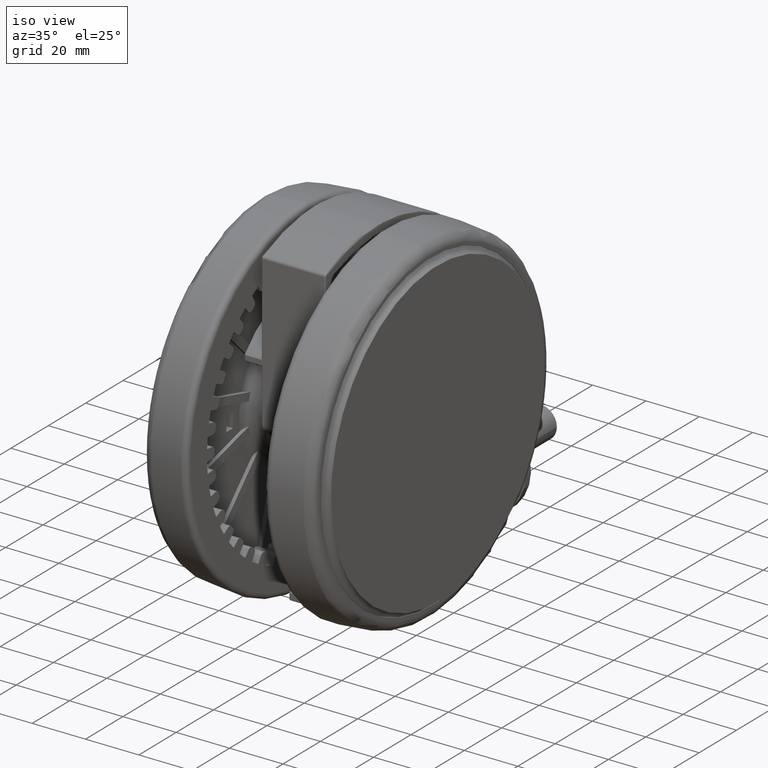
[diagram: clean part render]
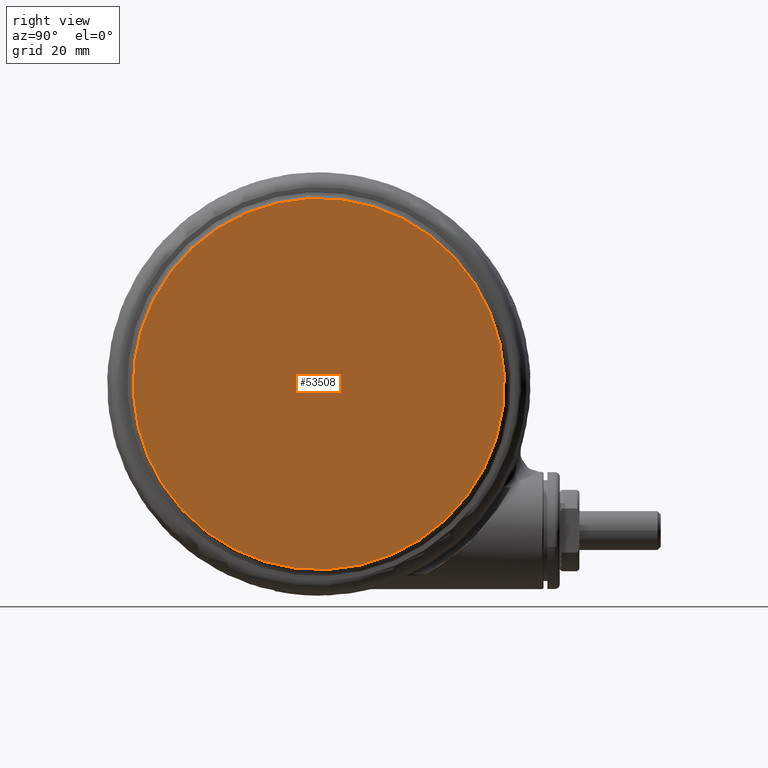
[diagram: tour spotlight — one face highlighted and labeled with its STEP entity id]
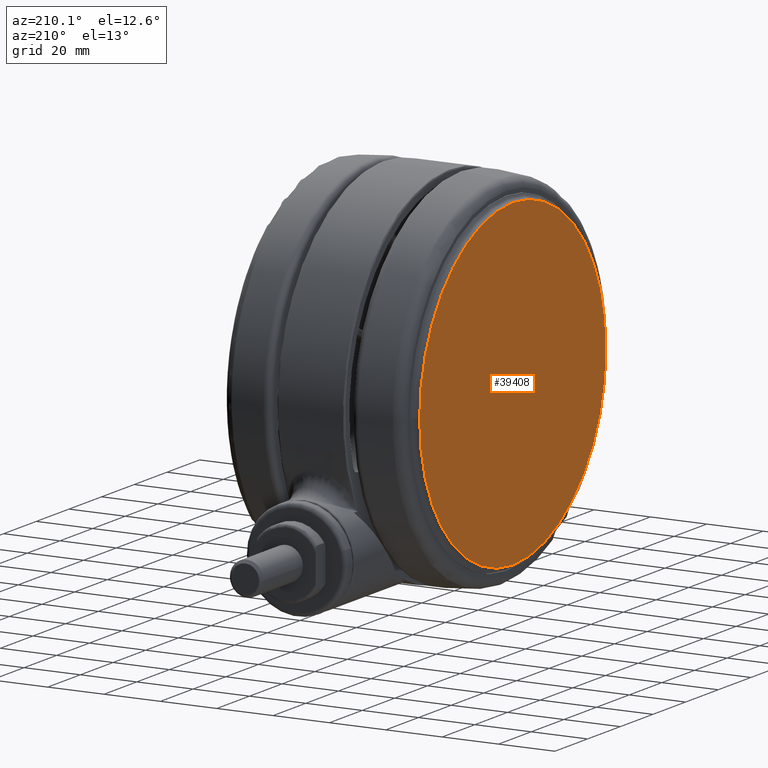
[diagram: tour spotlight — one face highlighted and labeled with its STEP entity id]
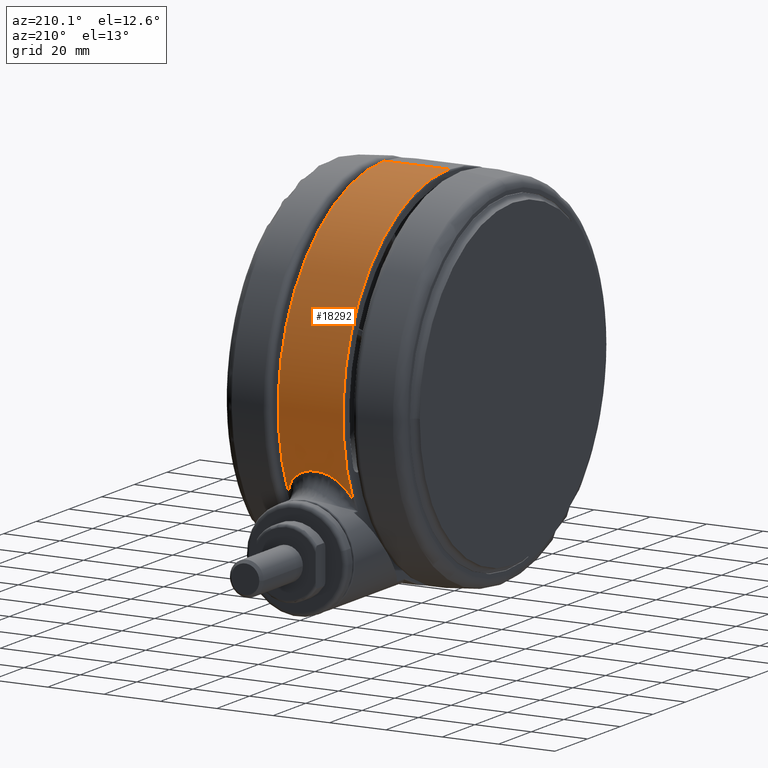
[diagram: tour spotlight — one face highlighted and labeled with its STEP entity id]
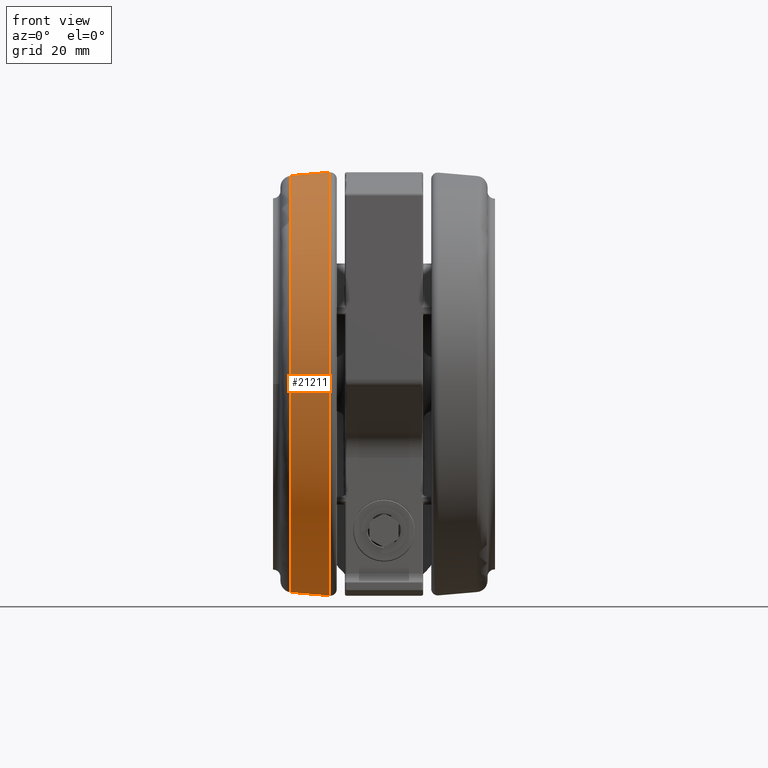
[diagram: tour spotlight — one face highlighted and labeled with its STEP entity id]
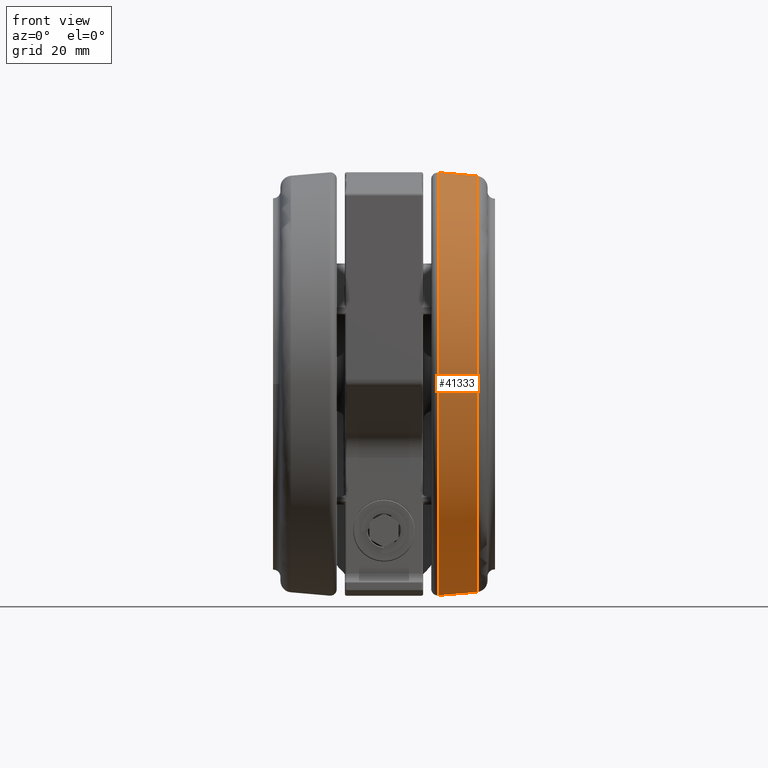
[diagram: tour spotlight — one face highlighted and labeled with its STEP entity id]
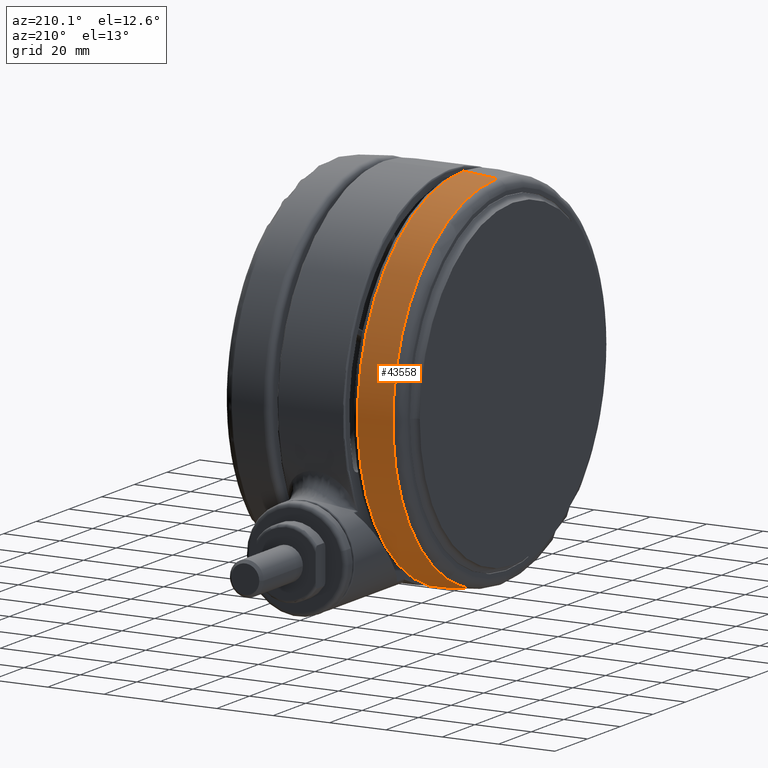
[diagram: tour spotlight — one face highlighted and labeled with its STEP entity id]
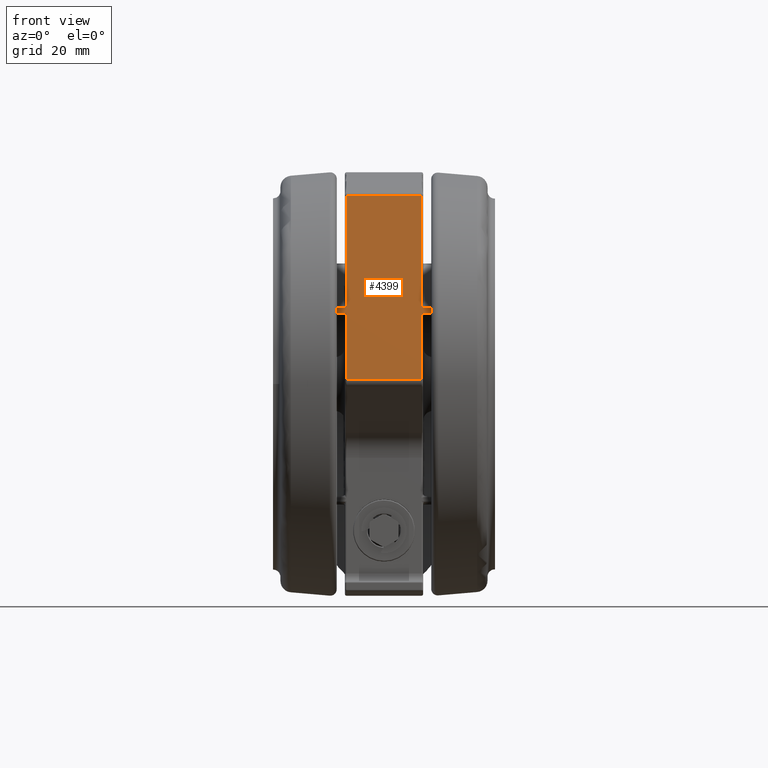
[diagram: tour spotlight — one face highlighted and labeled with its STEP entity id]
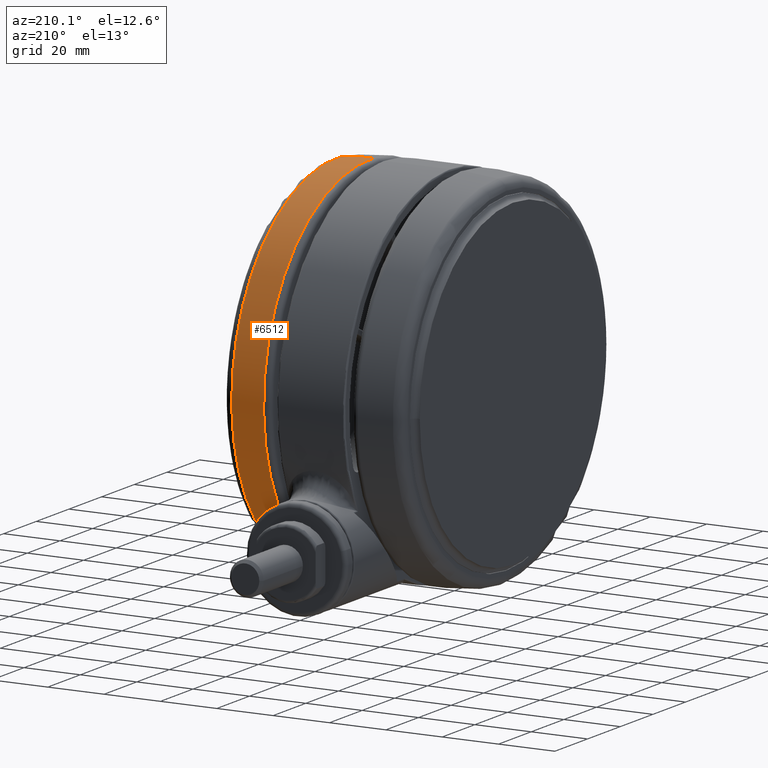
[diagram: tour spotlight — one face highlighted and labeled with its STEP entity id]
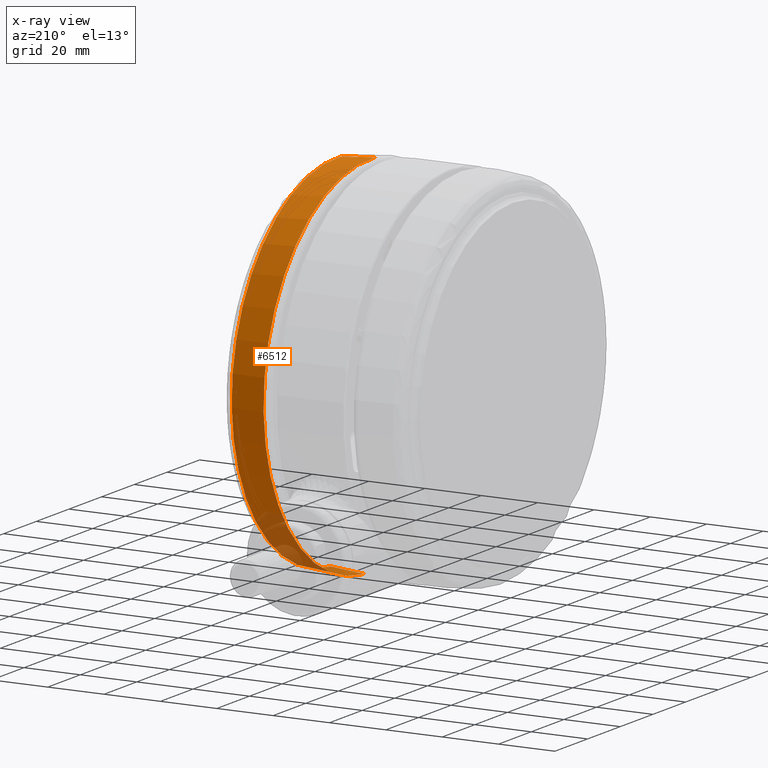
[diagram: x-ray of the same camera — body ghosted, this tour face saturated]
A machine part: a face-by-face anatomy tour. The part has 2279 B-rep faces; the first image is the clean iso view, then the 8 largest visible faces are spotlighted one at a time (largest first), each with its STEP entity span.

Face 1 — right view, entity #53508. In plain terms, the highlighted planar face has unit normal (1, 0, 0).
Definition (entity closure, byte-faithful):
#1306 = CARTESIAN_POINT ( 'NONE',  ( 0.0000000000000000000, 0.0000000000000000000, 2.168404344971008900E-015 ) ) ;
#6951 = DIRECTION ( 'NONE',  ( 1.000000000000000000, 0.0000000000000000000, 0.0000000000000000000 ) ) ;
#8511 = AXIS2_PLACEMENT_3D ( 'NONE', #58209, #24239, #63897 ) ;
#9023 = CARTESIAN_POINT ( 'NONE',  ( 0.0000000000000000000, 0.0000000000000000000, 2.168404344971008900E-015 ) ) ;
#10369 = CIRCLE ( 'NONE', #31713, 57.00000000000001400 ) ;
#12424 = PLANE ( 'NONE',  #46322 ) ;
#13680 = CIRCLE ( 'NONE', #8511, 57.00000000000001400 ) ;
#14180 = VERTEX_POINT ( 'NONE', #57859 ) ;
#14686 = DIRECTION ( 'NONE',  ( 1.000000000000000000, 0.0000000000000000000, 0.0000000000000000000 ) ) ;
#16235 = ORIENTED_EDGE ( 'NONE', *, *, #67580, .T. ) ;
#16610 = CARTESIAN_POINT ( 'NONE',  ( -57.00000000000000000, 0.0000000000000000000, 2.168404344971008900E-015 ) ) ;
#18155 = FACE_OUTER_BOUND ( 'NONE', #61961, .T. ) ;
#21106 = ORIENTED_EDGE ( 'NONE', *, *, #59235, .T. ) ;
#24239 = DIRECTION ( 'NONE',  ( 0.0000000000000000000, 0.0000000000000000000, 1.000000000000000000 ) ) ;
#25881 = VERTEX_POINT ( 'NONE', #16610 ) ;
#31713 = AXIS2_PLACEMENT_3D ( 'NONE', #9023, #48690, #14686 ) ;
#40917 = DIRECTION ( 'NONE',  ( 0.0000000000000000000, 0.0000000000000000000, 1.000000000000000000 ) ) ;
#46322 = AXIS2_PLACEMENT_3D ( 'NONE', #1306, #40917, #6951 ) ;
#48690 = DIRECTION ( 'NONE',  ( 0.0000000000000000000, 0.0000000000000000000, 1.000000000000000000 ) ) ;
#53508 = ADVANCED_FACE ( 'NONE', ( #18155 ), #12424, .T. ) ;
#57859 = CARTESIAN_POINT ( 'NONE',  ( 57.00000000000000000, 6.980486755139912900E-015, 2.168404344971008900E-015 ) ) ;
#58209 = CARTESIAN_POINT ( 'NONE',  ( 0.0000000000000000000, 0.0000000000000000000, 2.168404344971008900E-015 ) ) ;
#59235 = EDGE_CURVE ( 'NONE', #14180, #25881, #10369, .T. ) ;
#61961 = EDGE_LOOP ( 'NONE', ( #16235, #21106 ) ) ;
#63897 = DIRECTION ( 'NONE',  ( 1.000000000000000000, 0.0000000000000000000, 0.0000000000000000000 ) ) ;
#67580 = EDGE_CURVE ( 'NONE', #25881, #14180, #13680, .T. ) ;

Face 2 — auxiliary view, entity #39408. In plain terms, the highlighted planar face has unit normal (-1, 0, 0).
Definition (entity closure, byte-faithful):
#2369 = CARTESIAN_POINT ( 'NONE',  ( 2.881774776673948300, 56.92710579448533500, -68.19999999999996000 ) ) ;
#3143 = PLANE ( 'NONE',  #37840 ) ;
#5410 = CARTESIAN_POINT ( 'NONE',  ( 0.0000000000000000000, 0.0000000000000000000, -68.19999999999996000 ) ) ;
#11101 = DIRECTION ( 'NONE',  ( -0.05055745222234997400, -0.9987211542892163700, 0.0000000000000000000 ) ) ;
#13602 = AXIS2_PLACEMENT_3D ( 'NONE', #5410, #45039, #11101 ) ;
#14490 = VERTEX_POINT ( 'NONE', #57771 ) ;
#14499 = DIRECTION ( 'NONE',  ( -0.05055745222234997400, -0.9987211542892164800, 0.0000000000000000000 ) ) ;
#15629 = VERTEX_POINT ( 'NONE', #2369 ) ;
#15746 = CARTESIAN_POINT ( 'NONE',  ( 0.0000000000000000000, 0.0000000000000000000, -68.19999999999996000 ) ) ;
#16211 = FACE_OUTER_BOUND ( 'NONE', #35807, .T. ) ;
#20330 = EDGE_CURVE ( 'NONE', #15629, #14490, #67895, .T. ) ;
#21444 = DIRECTION ( 'NONE',  ( -0.05055745222234997400, -0.9987211542892163700, 0.0000000000000000000 ) ) ;
#28246 = EDGE_CURVE ( 'NONE', #14490, #15629, #50523, .T. ) ;
#31316 = CARTESIAN_POINT ( 'NONE',  ( 0.0000000000000000000, 0.0000000000000000000, -68.19999999999996000 ) ) ;
#35807 = EDGE_LOOP ( 'NONE', ( #70188, #69798 ) ) ;
#37840 = AXIS2_PLACEMENT_3D ( 'NONE', #31316, #48493, #14499 ) ;
#39408 = ADVANCED_FACE ( 'NONE', ( #16211 ), #3143, .T. ) ;
#45039 = DIRECTION ( 'NONE',  ( 0.0000000000000000000, 0.0000000000000000000, -1.000000000000000000 ) ) ;
#48493 = DIRECTION ( 'NONE',  ( -0.0000000000000000000, 0.0000000000000000000, -1.000000000000000000 ) ) ;
#50216 = AXIS2_PLACEMENT_3D ( 'NONE', #15746, #55419, #21444 ) ;
#50523 = CIRCLE ( 'NONE', #50216, 57.00000000000000700 ) ;
#55419 = DIRECTION ( 'NONE',  ( 0.0000000000000000000, 0.0000000000000000000, -1.000000000000000000 ) ) ;
#57771 = CARTESIAN_POINT ( 'NONE',  ( -2.881774776673955400, -56.92710579448533500, -68.19999999999996000 ) ) ;
#67895 = CIRCLE ( 'NONE', #13602, 57.00000000000000700 ) ;
#69798 = ORIENTED_EDGE ( 'NONE', *, *, #28246, .T. ) ;
#70188 = ORIENTED_EDGE ( 'NONE', *, *, #20330, .T. ) ;

Face 3 — auxiliary view, entity #18292. In plain terms, the highlighted cylindrical surface (partial cylindrical patch) has radius 65 mm, axis along (-1, 0, 0).
Definition (entity closure, byte-faithful):
#260 = DIRECTION ( 'NONE',  ( 0.9987211542892169300, -0.05055745222233948300, 0.0000000000000000000 ) ) ;
#956 = VERTEX_POINT ( 'NONE', #28639 ) ;
#1745 = VERTEX_POINT ( 'NONE', #3814 ) ;
#2137 = CARTESIAN_POINT ( 'NONE',  ( 30.85767680942724000, 57.20841156188682700, -22.59998678528551300 ) ) ;
#2380 = CARTESIAN_POINT ( 'NONE',  ( 27.40443335749018800, 58.94127830065013300, -24.26384737468194100 ) ) ;
#2627 = CARTESIAN_POINT ( 'NONE',  ( 23.53622462848794700, 60.58920958930831100, -28.85910942606973600 ) ) ;
#2875 = CARTESIAN_POINT ( 'NONE',  ( 22.63563683539776900, 60.93134109894931100, -36.72101404126439700 ) ) ;
#3104 = CARTESIAN_POINT ( 'NONE',  ( 24.83655952838691400, 60.06793484517844200, -41.44564791616737400 ) ) ;
#3344 = CARTESIAN_POINT ( 'NONE',  ( 28.67500760954952500, 58.33400287056930000, -44.70101322629943000 ) ) ;
#3814 = CARTESIAN_POINT ( 'NONE',  ( 30.85767680942724000, 57.20841156188682700, -22.59998678528551300 ) ) ;
#5887 = AXIS2_PLACEMENT_3D ( 'NONE', #52424, #35554, #29813 ) ;
#7790 = CARTESIAN_POINT ( 'NONE',  ( 30.72748461653197800, 57.27864845337011000, -22.63798909152320200 ) ) ;
#8037 = CARTESIAN_POINT ( 'NONE',  ( 26.67738830504683600, 59.27382860698435300, -24.82376520895497800 ) ) ;
#8292 = CARTESIAN_POINT ( 'NONE',  ( 23.25986000947422000, 60.69596897593385200, -29.46952685547006100 ) ) ;
#8535 = CARTESIAN_POINT ( 'NONE',  ( 22.69369770015514800, 60.90974082231656400, -36.96602451007599700 ) ) ;
#8568 = VERTEX_POINT ( 'NONE', #51632 ) ;
#8791 = CARTESIAN_POINT ( 'NONE',  ( 25.76471178823903300, 59.67782639750701200, -42.54105573440213600 ) ) ;
#9031 = CARTESIAN_POINT ( 'NONE',  ( 29.82113786353204800, 57.75635851285488800, -45.23463577218235800 ) ) ;
#10995 = CIRCLE ( 'NONE', #56343, 65.00000000000001400 ) ;
#13495 = CARTESIAN_POINT ( 'NONE',  ( 30.38924208244876000, 57.45864828589893800, -22.74730794547273400 ) ) ;
#13732 = CARTESIAN_POINT ( 'NONE',  ( 25.74205844577406300, 59.68758888097082100, -25.67161477966177000 ) ) ;
#13978 = CARTESIAN_POINT ( 'NONE',  ( 22.81410850016154500, 60.86480686348003400, -30.74381804980060600 ) ) ;
#14211 = CARTESIAN_POINT ( 'NONE',  ( 23.01866967734219200, 60.78802081036685900, -38.09847191435390800 ) ) ;
#14466 = CARTESIAN_POINT ( 'NONE',  ( 26.46696205727963800, 59.36763903679734300, -43.17996524115104500 ) ) ;
#14697 = CARTESIAN_POINT ( 'NONE',  ( 30.23884688142797500, 57.53796477734240300, -45.38961938130316300 ) ) ;
#15969 = ORIENTED_EDGE ( 'NONE', *, *, #46865, .T. ) ;
#18292 = ADVANCED_FACE ( 'NONE', ( #35259 ), #18382, .T. ) ;
#18382 = CYLINDRICAL_SURFACE ( 'NONE', #5887, 65.00000000000001400 ) ;
#19183 = CARTESIAN_POINT ( 'NONE',  ( 30.30922790666638600, 57.50087852135639800, -22.77472115942669700 ) ) ;
#19417 = CARTESIAN_POINT ( 'NONE',  ( 24.81660103994915500, 60.07618269368134600, -26.76867654488042400 ) ) ;
#19525 = CARTESIAN_POINT ( 'NONE',  ( -64.91687502879911200, 3.286234394452067300, -22.10000000000001200 ) ) ;
#19661 = CARTESIAN_POINT ( 'NONE',  ( 22.57096161245352000, 60.95535683339331700, -31.74024620383021000 ) ) ;
#19903 = CARTESIAN_POINT ( 'NONE',  ( 23.54576438761290500, 60.58563333715202500, -39.34500890495595400 ) ) ;
#20148 = CARTESIAN_POINT ( 'NONE',  ( 27.06109287585497800, 59.10008874835167300, -43.67055891791640900 ) ) ;
#20188 = ORIENTED_EDGE ( 'NONE', *, *, #26177, .F. ) ;
#20380 = CARTESIAN_POINT ( 'NONE',  ( 30.56000969761276000, 57.36831076899275000, -45.50066272966974900 ) ) ;
#23076 = DIRECTION ( 'NONE',  ( -0.0000000000000000000, -0.0000000000000000000, -1.000000000000000000 ) ) ;
#24856 = CARTESIAN_POINT ( 'NONE',  ( 30.20516816118111700, 57.55566280843479600, -22.81098914732463700 ) ) ;
#25108 = CARTESIAN_POINT ( 'NONE',  ( 24.52882122386221700, 60.19424928666351300, -27.16199617994394400 ) ) ;
#25342 = CARTESIAN_POINT ( 'NONE',  ( 22.33899661883782900, 61.04071781328430300, -33.43434025362709100 ) ) ;
#25588 = CARTESIAN_POINT ( 'NONE',  ( 24.01236456024622300, 60.40228257277431800, -40.22387728627675300 ) ) ;
#25821 = CARTESIAN_POINT ( 'NONE',  ( 27.82149660301734400, 58.74508064988045700, -44.19546713598208500 ) ) ;
#26066 = CARTESIAN_POINT ( 'NONE',  ( 30.88542585593857800, 57.19343415430707700, -45.60001317750133200 ) ) ;
#26177 = EDGE_CURVE ( 'NONE', #8568, #42321, #27688, .T. ) ;
#27688 = LINE ( 'NONE', #19525, #72936 ) ;
#28639 = CARTESIAN_POINT ( 'NONE',  ( 30.88542585593857800, 57.19343415430707700, -45.60001317750133200 ) ) ;
#28681 = ORIENTED_EDGE ( 'NONE', *, *, #46092, .T. ) ;
#29226 = ORIENTED_EDGE ( 'NONE', *, *, #61063, .T. ) ;
#29813 = DIRECTION ( 'NONE',  ( -0.9987211542892169300, 0.05055745222233948300, 0.0000000000000000000 ) ) ;
#30570 = CARTESIAN_POINT ( 'NONE',  ( 29.50239437028100300, 57.91978950853074800, -23.08332653724181000 ) ) ;
#30808 = CARTESIAN_POINT ( 'NONE',  ( 23.99585175553981000, 60.40883973454327800, -27.98655297348598500 ) ) ;
#31038 = CARTESIAN_POINT ( 'NONE',  ( 22.40040027287965400, 61.01833995043119800, -35.46171010077048200 ) ) ;
#31286 = CARTESIAN_POINT ( 'NONE',  ( 24.45497719440296100, 60.22427801439929600, -40.91772146268632300 ) ) ;
#31531 = CARTESIAN_POINT ( 'NONE',  ( 28.14976974487996500, 58.58835907946632200, -44.39846952754952300 ) ) ;
#34150 = DIRECTION ( 'NONE',  ( 0.0000000000000000000, 0.0000000000000000000, 1.000000000000000000 ) ) ;
#35259 = FACE_OUTER_BOUND ( 'NONE', #70835, .T. ) ;
#35554 = DIRECTION ( 'NONE',  ( 0.0000000000000000000, 0.0000000000000000000, -1.000000000000000000 ) ) ;
#36295 = CARTESIAN_POINT ( 'NONE',  ( 28.15903806299617100, 58.58649671047056300, -23.75721250415117300 ) ) ;
#36549 = CARTESIAN_POINT ( 'NONE',  ( 23.68281213228884100, 60.53206256131112200, -28.56394961349961300 ) ) ;
#36795 = CARTESIAN_POINT ( 'NONE',  ( 22.58059018820376100, 60.95177174614773500, -36.46947112114221300 ) ) ;
#37026 = CARTESIAN_POINT ( 'NONE',  ( 24.74068028622228300, 60.10748316977531400, -41.31869377110954400 ) ) ;
#37270 = CARTESIAN_POINT ( 'NONE',  ( 28.34712190659584200, 58.49312736997607900, -44.51417581783356100 ) ) ;
#41999 = CARTESIAN_POINT ( 'NONE',  ( 27.15835937455233000, 59.05500250267603200, -24.44338225760731500 ) ) ;
#42234 = CARTESIAN_POINT ( 'NONE',  ( 23.46619055292160600, 60.61636194404066200, -29.00752762653284800 ) ) ;
#42321 = VERTEX_POINT ( 'NONE', #45047 ) ;
#42480 = CARTESIAN_POINT ( 'NONE',  ( 22.65427579260403900, 60.92441407728460900, -36.80211477291717900 ) ) ;
#42722 = CARTESIAN_POINT ( 'NONE',  ( 25.33141922372161400, 59.86236691327359700, -42.07451242590615000 ) ) ;
#42968 = CARTESIAN_POINT ( 'NONE',  ( 29.27479609613584400, 58.03671581887150700, -45.00662855529272800 ) ) ;
#45047 = CARTESIAN_POINT ( 'NONE',  ( -64.91687502879911200, 3.286234394452067300, -45.60000000000001600 ) ) ;
#46092 = EDGE_CURVE ( 'NONE', #956, #42321, #10995, .T. ) ;
#46865 = EDGE_CURVE ( 'NONE', #1745, #956, #61170, .T. ) ;
#47470 = CARTESIAN_POINT ( 'NONE',  ( 30.56575085140514900, 57.36516902281240200, -22.68826808428495700 ) ) ;
#47716 = CARTESIAN_POINT ( 'NONE',  ( 26.44444395755122600, 59.37808386634157600, -25.02255636260321500 ) ) ;
#47964 = CARTESIAN_POINT ( 'NONE',  ( 23.01077293390828900, 60.79100698097549600, -30.09609914001082500 ) ) ;
#48213 = CARTESIAN_POINT ( 'NONE',  ( 22.79640953228501800, 60.87145484554586300, -37.37453438213964300 ) ) ;
#48453 = CARTESIAN_POINT ( 'NONE',  ( 26.35160053930471200, 59.41893307341769800, -43.07854949590336700 ) ) ;
#48696 = CARTESIAN_POINT ( 'NONE',  ( 30.16657559731045500, 57.57589593302547100, -45.36349939107379500 ) ) ;
#49100 = CIRCLE ( 'NONE', #58471, 65.00000000000001400 ) ;
#51632 = CARTESIAN_POINT ( 'NONE',  ( -64.91687502879911200, 3.286234394452067300, -22.60000000000001200 ) ) ;
#52424 = CARTESIAN_POINT ( 'NONE',  ( 0.0000000000000000000, 0.0000000000000000000, -22.10000000000001200 ) ) ;
#53156 = CARTESIAN_POINT ( 'NONE',  ( 30.34121822447230000, 57.48400476376870900, -22.76371515054530200 ) ) ;
#53393 = CARTESIAN_POINT ( 'NONE',  ( 25.30998606259701600, 59.87142250723999800, -26.13959871664295100 ) ) ;
#53648 = CARTESIAN_POINT ( 'NONE',  ( 22.64380216433945800, 60.92837175510374700, -31.40211027221485900 ) ) ;
#53882 = CARTESIAN_POINT ( 'NONE',  ( 23.26909797688759700, 60.69243006176972700, -38.72578671632170000 ) ) ;
#54133 = CARTESIAN_POINT ( 'NONE',  ( 26.70242720510791700, 59.26210447411443000, -43.37910290249594400 ) ) ;
#54378 = CARTESIAN_POINT ( 'NONE',  ( 30.36706669633093400, 57.47039682913046500, -45.43470148881116400 ) ) ;
#56343 = AXIS2_PLACEMENT_3D ( 'NONE', #68125, #34150, #260 ) ;
#57067 = CARTESIAN_POINT ( 'NONE',  ( 0.0000000000000000000, 0.0000000000000000000, -22.60000000000001200 ) ) ;
#58471 = AXIS2_PLACEMENT_3D ( 'NONE', #57067, #23076, #62723 ) ;
#58848 = CARTESIAN_POINT ( 'NONE',  ( 30.29438022402080600, 57.50870311007434300, -22.77986088566464000 ) ) ;
#59073 = CARTESIAN_POINT ( 'NONE',  ( 24.72044162842222500, 60.11580893170241800, -26.89637461909180500 ) ) ;
#59328 = CARTESIAN_POINT ( 'NONE',  ( 22.39668313354047100, 61.01970111205406500, -32.75484630788493900 ) ) ;
#59581 = CARTESIAN_POINT ( 'NONE',  ( 23.69340544978340900, 60.52810859400464900, -39.64227792798575900 ) ) ;
#59818 = CARTESIAN_POINT ( 'NONE',  ( 27.43600021341070800, 58.92662036346900600, -43.94026350354615600 ) ) ;
#60050 = CARTESIAN_POINT ( 'NONE',  ( 30.75477686531990400, 57.26400042046567100, -45.56163820931811200 ) ) ;
#61063 = EDGE_CURVE ( 'NONE', #8568, #1745, #49100, .T. ) ;
#61170 = B_SPLINE_CURVE_WITH_KNOTS ( 'NONE', 3,
 ( #2137, #7790, #47470, #13495, #53156, #19183, #58848, #24856, #64531, #30570, #70246, #36295, #2380, #41999, #8037, #47716, #13732, #53393, #19417, #59073, #25108, #64755, #30808, #70490, #36549, #2627, #42234, #8292, #47964, #13978, #53648, #19661, #59328, #25342, #65005, #31038, #70746, #36795, #2875, #42480, #8535, #48213, #14211, #53882, #19903, #59581, #25588, #65242, #31286, #70983, #37026, #3104, #42722, #8791, #48453, #14466, #54133, #20148, #59818, #25821, #65488, #31531, #71223, #37270, #3344, #42968, #9031, #48696, #14697, #54378, #20380, #60050, #26066 ),
 .UNSPECIFIED., .F., .F.,
 ( 4, 1, 1, 2, 2, 1, 2, 2, 2, 2, 2, 2, 1, 2, 2, 2, 1, 2, 2, 2, 2, 2, 2, 1, 1, 2, 2, 2, 2, 2, 2, 2, 1, 2, 2, 2, 1, 1, 2, 2, 1, 4 ),
 ( 0.1067419510893012100, 0.1190486621800586500, 0.1221253399527479900, 0.1236636788390926100, 0.1252020177254372400, 0.1313553732708152000, 0.1559687954523260300, 0.2051956398153476600, 0.2298090619968587400, 0.2544224841783698800, 0.3036493285413918700, 0.3159560396321475200, 0.3282627507229031200, 0.3528761729044146400, 0.3651828839951705200, 0.3774895950859263900, 0.4021030172674385800, 0.4267164394489503200, 0.4513298616304621800, 0.5005567059934854500, 0.5497835503565087200, 0.5620902614472649300, 0.5682436169926430300, 0.5743969725380211300, 0.5990103947195329900, 0.6236238169010448500, 0.6482372390825565900, 0.6728506612640684500, 0.6851573723548242100, 0.6974640834455800900, 0.7466909278086021300, 0.7589976388993579000, 0.7713043499901135500, 0.7959177721716251800, 0.8082244832623808300, 0.8143778388077588200, 0.8205311943531367100, 0.8451446165346485600, 0.8697580387161604200, 0.8759113942615384100, 0.8820647498069162900, 0.8943714608976720500 ),
 .UNSPECIFIED. ) ;
#62723 = DIRECTION ( 'NONE',  ( 0.9987211542892169300, -0.05055745222233948300, 0.0000000000000000000 ) ) ;
#64531 = CARTESIAN_POINT ( 'NONE',  ( 29.84987023758653300, 57.74183707245567400, -22.93883237919850200 ) ) ;
#64755 = CARTESIAN_POINT ( 'NONE',  ( 24.24973697116611900, 60.30769072716906000, -27.56596694341927300 ) ) ;
#64883 = DIRECTION ( 'NONE',  ( 0.0000000000000000000, 0.0000000000000000000, -1.000000000000000000 ) ) ;
#65005 = CARTESIAN_POINT ( 'NONE',  ( 22.34096416800246500, 61.03999771577223000, -34.78746132979095800 ) ) ;
#65242 = CARTESIAN_POINT ( 'NONE',  ( 24.18286767656901800, 60.33429537729978900, -40.50638821005868800 ) ) ;
#65488 = CARTESIAN_POINT ( 'NONE',  ( 27.95175998900652600, 58.68322195290526400, -44.27811818792844200 ) ) ;
#68125 = CARTESIAN_POINT ( 'NONE',  ( 0.0000000000000000000, 0.0000000000000000000, -45.60000000000001600 ) ) ;
#70246 = CARTESIAN_POINT ( 'NONE',  ( 28.68396396380759900, 58.33183841172306900, -23.46208229479114100 ) ) ;
#70490 = CARTESIAN_POINT ( 'NONE',  ( 23.75894942252302400, 60.50222745672167700, -28.41821584794692500 ) ) ;
#70746 = CARTESIAN_POINT ( 'NONE',  ( 22.54752546931619500, 60.96400642287844100, -36.30163135561684100 ) ) ;
#70835 = EDGE_LOOP ( 'NONE', ( #20188, #29226, #15969, #28681 ) ) ;
#70983 = CARTESIAN_POINT ( 'NONE',  ( 24.54840586594037100, 60.18626557173118400, -41.05276035805465500 ) ) ;
#71223 = CARTESIAN_POINT ( 'NONE',  ( 28.21639727194856200, 58.55629936137722100, -44.43807676528075500 ) ) ;
#72936 = VECTOR ( 'NONE', #64883, 1000.000000000000000 ) ;

Face 4 — front view, entity #21211. In plain terms, the highlighted conical surface has half-angle 4.961 deg.
Definition (entity closure, byte-faithful):
#99 = VERTEX_POINT ( 'NONE', #42206 ) ;
#2727 = EDGE_LOOP ( 'NONE', ( #55538, #32583, #60156, #3893 ) ) ;
#3068 = DIRECTION ( 'NONE',  ( -0.08637418938876016700, 0.004372450643015986800, 0.9962531711782949300 ) ) ;
#3893 = ORIENTED_EDGE ( 'NONE', *, *, #50311, .T. ) ;
#3962 = VECTOR ( 'NONE', #3068, 1000.000000000000000 ) ;
#4254 = DIRECTION ( 'NONE',  ( 0.0000000000000000000, 0.0000000000000000000, -1.000000000000000000 ) ) ;
#4529 = LINE ( 'NONE', #8844, #49763 ) ;
#8665 = EDGE_CURVE ( 'NONE', #12020, #45151, #19012, .T. ) ;
#8745 = CARTESIAN_POINT ( 'NONE',  ( -5.551115123125782700E-014, -2.602085213965210600E-014, -62.70269676532072400 ) ) ;
#8844 = CARTESIAN_POINT ( 'NONE',  ( 63.87509510966110300, -3.233497213246099700, -62.70269676532072400 ) ) ;
#12020 = VERTEX_POINT ( 'NONE', #42585 ) ;
#12412 = DIRECTION ( 'NONE',  ( 0.0000000000000000000, 0.0000000000000000000, -1.000000000000000000 ) ) ;
#14426 = DIRECTION ( 'NONE',  ( 0.9987211542892170400, -0.05055745222233949000, 0.0000000000000000000 ) ) ;
#17452 = CIRCLE ( 'NONE', #31837, 64.99250634235662000 ) ;
#19012 = LINE ( 'NONE', #70702, #3962 ) ;
#20078 = CIRCLE ( 'NONE', #37396, 63.95688609912406300 ) ;
#21211 = ADVANCED_FACE ( 'NONE', ( #56273 ), #54486, .T. ) ;
#29524 = VERTEX_POINT ( 'NONE', #47493 ) ;
#31006 = DIRECTION ( 'NONE',  ( 0.0000000000000000000, -0.0000000000000000000, 1.000000000000000000 ) ) ;
#31837 = AXIS2_PLACEMENT_3D ( 'NONE', #46360, #12412, #52087 ) ;
#32583 = ORIENTED_EDGE ( 'NONE', *, *, #73379, .F. ) ;
#34647 = CARTESIAN_POINT ( 'NONE',  ( -64.90939095438770300, 3.285855534213773000, -50.77296958018335000 ) ) ;
#37396 = AXIS2_PLACEMENT_3D ( 'NONE', #38165, #4254, #43887 ) ;
#38165 = CARTESIAN_POINT ( 'NONE',  ( -5.551115123125782700E-014, -2.602085213965210600E-014, -62.70269676532072400 ) ) ;
#42206 = CARTESIAN_POINT ( 'NONE',  ( 64.90939095438759000, -3.285855534213816500, -50.77296958018335000 ) ) ;
#42585 = CARTESIAN_POINT ( 'NONE',  ( -63.87509510966121700, 3.233497213246047800, -62.70269676532072400 ) ) ;
#43887 = DIRECTION ( 'NONE',  ( -0.9987211542892170400, 0.05055745222233949000, 0.0000000000000000000 ) ) ;
#45151 = VERTEX_POINT ( 'NONE', #34647 ) ;
#46360 = CARTESIAN_POINT ( 'NONE',  ( -5.551115123125782700E-014, -2.602085213965210600E-014, -50.77296958018335000 ) ) ;
#47493 = CARTESIAN_POINT ( 'NONE',  ( 63.87509510966110300, -3.233497213246091700, -62.70269676532072400 ) ) ;
#48511 = DIRECTION ( 'NONE',  ( 0.08637418938876016700, -0.004372450643015976400, 0.9962531711782949300 ) ) ;
#49763 = VECTOR ( 'NONE', #48511, 1000.000000000000000 ) ;
#50311 = EDGE_CURVE ( 'NONE', #99, #45151, #17452, .T. ) ;
#52087 = DIRECTION ( 'NONE',  ( -0.9987211542892168200, 0.05055745222233948300, 0.0000000000000000000 ) ) ;
#54486 = CONICAL_SURFACE ( 'NONE', #62524, 63.95688609912406300, 0.08659296680489261800 ) ;
#55538 = ORIENTED_EDGE ( 'NONE', *, *, #8665, .F. ) ;
#55890 = EDGE_CURVE ( 'NONE', #29524, #99, #4529, .T. ) ;
#56273 = FACE_OUTER_BOUND ( 'NONE', #2727, .T. ) ;
#60156 = ORIENTED_EDGE ( 'NONE', *, *, #55890, .T. ) ;
#62524 = AXIS2_PLACEMENT_3D ( 'NONE', #8745, #31006, #14426 ) ;
#70702 = CARTESIAN_POINT ( 'NONE',  ( -63.87509510966121700, 3.233497213246055800, -62.70269676532072400 ) ) ;
#73379 = EDGE_CURVE ( 'NONE', #29524, #12020, #20078, .T. ) ;

Face 5 — front view, entity #41333. In plain terms, the highlighted conical surface has half-angle 4.961 deg.
Definition (entity closure, byte-faithful):
#13 = DIRECTION ( 'NONE',  ( 0.0000000000000000000, 0.0000000000000000000, 1.000000000000000000 ) ) ;
#534 = EDGE_CURVE ( 'NONE', #13956, #72277, #40963, .T. ) ;
#7047 = DIRECTION ( 'NONE',  ( -0.0000000000000000000, -0.0000000000000000000, -1.000000000000000000 ) ) ;
#7130 = DIRECTION ( 'NONE',  ( -0.08648479009161678900, 0.0000000000000000000, -0.9962531711782949300 ) ) ;
#7439 = DIRECTION ( 'NONE',  ( 0.0000000000000000000, 0.0000000000000000000, 1.000000000000000000 ) ) ;
#11197 = LINE ( 'NONE', #24139, #69723 ) ;
#13956 = VERTEX_POINT ( 'NONE', #43762 ) ;
#14264 = CARTESIAN_POINT ( 'NONE',  ( 63.95688609912399200, 2.081668171172168500E-014, -5.497303234679333400 ) ) ;
#18676 = CARTESIAN_POINT ( 'NONE',  ( -6.938893903907228400E-014, 2.081668171172168500E-014, -5.497303234679333400 ) ) ;
#18898 = EDGE_LOOP ( 'NONE', ( #60194, #71815, #52513, #28705 ) ) ;
#20075 = CARTESIAN_POINT ( 'NONE',  ( -63.95688609912412700, 2.864914129619410200E-014, -5.497303234679333400 ) ) ;
#20680 = VERTEX_POINT ( 'NONE', #14264 ) ;
#22218 = VECTOR ( 'NONE', #7130, 1000.000000000000000 ) ;
#23734 = CARTESIAN_POINT ( 'NONE',  ( -63.95688609912412700, 2.081668171172168500E-014, -5.497303234679333400 ) ) ;
#24139 = CARTESIAN_POINT ( 'NONE',  ( 63.95688609912399200, 2.864914129619410200E-014, -5.497303234679333400 ) ) ;
#27806 = AXIS2_PLACEMENT_3D ( 'NONE', #41395, #7439, #47106 ) ;
#28705 = ORIENTED_EDGE ( 'NONE', *, *, #534, .T. ) ;
#30111 = VERTEX_POINT ( 'NONE', #20075 ) ;
#31640 = EDGE_CURVE ( 'NONE', #30111, #20680, #50189, .T. ) ;
#33931 = CARTESIAN_POINT ( 'NONE',  ( -6.938893903907228400E-014, 2.081668171172168500E-014, -5.497303234679333400 ) ) ;
#36367 = CONICAL_SURFACE ( 'NONE', #41772, 63.95688609912406300, 0.08659296680489261800 ) ;
#37317 = LINE ( 'NONE', #23734, #22218 ) ;
#39639 = DIRECTION ( 'NONE',  ( 1.000000000000000000, 0.0000000000000000000, 0.0000000000000000000 ) ) ;
#40963 = CIRCLE ( 'NONE', #27806, 64.99250634235660600 ) ;
#41333 = ADVANCED_FACE ( 'NONE', ( #70066 ), #36367, .T. ) ;
#41395 = CARTESIAN_POINT ( 'NONE',  ( -6.938893903907228400E-014, 2.081668171172168500E-014, -17.42703041981672000 ) ) ;
#41772 = AXIS2_PLACEMENT_3D ( 'NONE', #18676, #7047, #58356 ) ;
#43762 = CARTESIAN_POINT ( 'NONE',  ( -64.99250634235667700, 2.081668171172168500E-014, -17.42703041981672000 ) ) ;
#47106 = DIRECTION ( 'NONE',  ( 1.000000000000000000, 0.0000000000000000000, 0.0000000000000000000 ) ) ;
#47825 = EDGE_CURVE ( 'NONE', #30111, #13956, #37317, .T. ) ;
#48052 = AXIS2_PLACEMENT_3D ( 'NONE', #33931, #13, #39639 ) ;
#50189 = CIRCLE ( 'NONE', #48052, 63.95688609912406300 ) ;
#52513 = ORIENTED_EDGE ( 'NONE', *, *, #47825, .T. ) ;
#58356 = DIRECTION ( 'NONE',  ( -1.000000000000000000, 0.0000000000000000000, 0.0000000000000000000 ) ) ;
#60194 = ORIENTED_EDGE ( 'NONE', *, *, #66559, .F. ) ;
#63795 = DIRECTION ( 'NONE',  ( 0.08648479009161678900, 1.059133213606292300E-017, -0.9962531711782949300 ) ) ;
#64771 = CARTESIAN_POINT ( 'NONE',  ( 64.99250634235653500, 2.877596819779479800E-014, -17.42703041981672000 ) ) ;
#66559 = EDGE_CURVE ( 'NONE', #20680, #72277, #11197, .T. ) ;
#69723 = VECTOR ( 'NONE', #63795, 1000.000000000000000 ) ;
#70066 = FACE_OUTER_BOUND ( 'NONE', #18898, .T. ) ;
#71815 = ORIENTED_EDGE ( 'NONE', *, *, #31640, .F. ) ;
#72277 = VERTEX_POINT ( 'NONE', #64771 ) ;

Face 6 — auxiliary view, entity #43558. In plain terms, the highlighted conical surface has half-angle 4.961 deg.
Definition (entity closure, byte-faithful):
#99 = VERTEX_POINT ( 'NONE', #42206 ) ;
#3068 = DIRECTION ( 'NONE',  ( -0.08637418938876016700, 0.004372450643015986800, 0.9962531711782949300 ) ) ;
#3962 = VECTOR ( 'NONE', #3068, 1000.000000000000000 ) ;
#4529 = LINE ( 'NONE', #8844, #49763 ) ;
#6901 = EDGE_LOOP ( 'NONE', ( #11329, #25438, #47548, #19807 ) ) ;
#8665 = EDGE_CURVE ( 'NONE', #12020, #45151, #19012, .T. ) ;
#8844 = CARTESIAN_POINT ( 'NONE',  ( 63.87509510966110300, -3.233497213246099700, -62.70269676532072400 ) ) ;
#11329 = ORIENTED_EDGE ( 'NONE', *, *, #41648, .F. ) ;
#12020 = VERTEX_POINT ( 'NONE', #42585 ) ;
#19012 = LINE ( 'NONE', #70702, #3962 ) ;
#19807 = ORIENTED_EDGE ( 'NONE', *, *, #55890, .F. ) ;
#23622 = FACE_OUTER_BOUND ( 'NONE', #6901, .T. ) ;
#25438 = ORIENTED_EDGE ( 'NONE', *, *, #8665, .T. ) ;
#29524 = VERTEX_POINT ( 'NONE', #47493 ) ;
#33215 = DIRECTION ( 'NONE',  ( 0.0000000000000000000, 0.0000000000000000000, -1.000000000000000000 ) ) ;
#33605 = DIRECTION ( 'NONE',  ( 0.0000000000000000000, 0.0000000000000000000, -1.000000000000000000 ) ) ;
#34647 = CARTESIAN_POINT ( 'NONE',  ( -64.90939095438770300, 3.285855534213773000, -50.77296958018335000 ) ) ;
#36938 = CONICAL_SURFACE ( 'NONE', #64252, 63.95688609912406300, 0.08659296680489261800 ) ;
#39070 = EDGE_CURVE ( 'NONE', #45151, #99, #44376, .T. ) ;
#41648 = EDGE_CURVE ( 'NONE', #12020, #29524, #62007, .T. ) ;
#42206 = CARTESIAN_POINT ( 'NONE',  ( 64.90939095438759000, -3.285855534213816500, -50.77296958018335000 ) ) ;
#42585 = CARTESIAN_POINT ( 'NONE',  ( -63.87509510966121700, 3.233497213246047800, -62.70269676532072400 ) ) ;
#43558 = ADVANCED_FACE ( 'NONE', ( #23622 ), #36938, .T. ) ;
#44376 = CIRCLE ( 'NONE', #59682, 64.99250634235662000 ) ;
#45151 = VERTEX_POINT ( 'NONE', #34647 ) ;
#47144 = DIRECTION ( 'NONE',  ( 0.9987211542892170400, -0.05055745222233949000, 0.0000000000000000000 ) ) ;
#47493 = CARTESIAN_POINT ( 'NONE',  ( 63.87509510966110300, -3.233497213246091700, -62.70269676532072400 ) ) ;
#47548 = ORIENTED_EDGE ( 'NONE', *, *, #39070, .T. ) ;
#48511 = DIRECTION ( 'NONE',  ( 0.08637418938876016700, -0.004372450643015976400, 0.9962531711782949300 ) ) ;
#49763 = VECTOR ( 'NONE', #48511, 1000.000000000000000 ) ;
#51773 = AXIS2_PLACEMENT_3D ( 'NONE', #67205, #33215, #72898 ) ;
#55890 = EDGE_CURVE ( 'NONE', #29524, #99, #4529, .T. ) ;
#58524 = CARTESIAN_POINT ( 'NONE',  ( -5.551115123125782700E-014, -2.602085213965210600E-014, -62.70269676532072400 ) ) ;
#59682 = AXIS2_PLACEMENT_3D ( 'NONE', #67600, #33605, #73267 ) ;
#62007 = CIRCLE ( 'NONE', #51773, 63.95688609912406300 ) ;
#64212 = DIRECTION ( 'NONE',  ( 0.0000000000000000000, -0.0000000000000000000, 1.000000000000000000 ) ) ;
#64252 = AXIS2_PLACEMENT_3D ( 'NONE', #58524, #64212, #47144 ) ;
#67205 = CARTESIAN_POINT ( 'NONE',  ( -5.551115123125782700E-014, -2.602085213965210600E-014, -62.70269676532072400 ) ) ;
#67600 = CARTESIAN_POINT ( 'NONE',  ( -5.551115123125782700E-014, -2.602085213965210600E-014, -50.77296958018335000 ) ) ;
#70702 = CARTESIAN_POINT ( 'NONE',  ( -63.87509510966121700, 3.233497213246055800, -62.70269676532072400 ) ) ;
#72898 = DIRECTION ( 'NONE',  ( -0.9987211542892170400, 0.05055745222233949000, 0.0000000000000000000 ) ) ;
#73267 = DIRECTION ( 'NONE',  ( -0.9987211542892168200, 0.05055745222233948300, 0.0000000000000000000 ) ) ;

Face 7 — front view, entity #4399. In plain terms, the highlighted planar face has unit normal (0, 1, 0).
Definition (entity closure, byte-faithful):
#351 = CARTESIAN_POINT ( 'NONE',  ( -59.78492581533100700, -25.51004988735560300, -22.10000000000001200 ) ) ;
#1367 = CARTESIAN_POINT ( 'NONE',  ( -23.23613178572311000, -27.36022989005225300, -22.60000000000001200 ) ) ;
#1906 = CARTESIAN_POINT ( 'NONE',  ( -24.82568249780020500, -27.27976335158384900, -52.10000000000000900 ) ) ;
#3442 = ORIENTED_EDGE ( 'NONE', *, *, #42314, .T. ) ;
#4399 = ADVANCED_FACE ( 'NONE', ( #23022 ), #34240, .F. ) ;
#5179 = DIRECTION ( 'NONE',  ( 0.0000000000000000000, 0.0000000000000000000, -1.000000000000000000 ) ) ;
#5509 = ORIENTED_EDGE ( 'NONE', *, *, #24276, .T. ) ;
#5721 = LINE ( 'NONE', #43681, #49192 ) ;
#6007 = DIRECTION ( 'NONE',  ( 0.05055745222233942700, 0.9987211542892169300, 0.0000000000000000000 ) ) ;
#6690 = VERTEX_POINT ( 'NONE', #7586 ) ;
#7586 = CARTESIAN_POINT ( 'NONE',  ( -24.82568249780020500, -27.27976335158384900, -16.10000000000001200 ) ) ;
#8735 = EDGE_CURVE ( 'NONE', #67285, #54641, #58913, .T. ) ;
#9628 = LINE ( 'NONE', #61885, #22903 ) ;
#9822 = LINE ( 'NONE', #11183, #66526 ) ;
#10604 = VECTOR ( 'NONE', #61942, 1000.000000000000100 ) ;
#10823 = VECTOR ( 'NONE', #12430, 1000.000000000000000 ) ;
#11183 = CARTESIAN_POINT ( 'NONE',  ( -59.78492581533100700, -25.51004988735560300, -45.60000000000001600 ) ) ;
#12430 = DIRECTION ( 'NONE',  ( -0.0000000000000000000, -0.0000000000000000000, 1.000000000000000000 ) ) ;
#12503 = CARTESIAN_POINT ( 'NONE',  ( -2.882411312193248400, -28.39057979900125900, -22.60000000000001200 ) ) ;
#14265 = EDGE_CURVE ( 'NONE', #51453, #16290, #5721, .T. ) ;
#14521 = DIRECTION ( 'NONE',  ( -0.9987211542892169300, 0.05055745222233942700, -0.0000000000000000000 ) ) ;
#14836 = CARTESIAN_POINT ( 'NONE',  ( -2.882411312193248400, -28.39057979900125900, -45.60000000000001600 ) ) ;
#14892 = CARTESIAN_POINT ( 'NONE',  ( -2.882411312193248400, -28.39057979900125900, -22.10000000000001200 ) ) ;
#16290 = VERTEX_POINT ( 'NONE', #66372 ) ;
#17172 = LINE ( 'NONE', #48512, #30453 ) ;
#18855 = CARTESIAN_POINT ( 'NONE',  ( -59.78492581533100700, -25.51004988735560300, -45.60000000000001600 ) ) ;
#19709 = EDGE_CURVE ( 'NONE', #62204, #51453, #44927, .T. ) ;
#21348 = DIRECTION ( 'NONE',  ( 0.9987211542892169300, -0.05055745222233942700, 0.0000000000000000000 ) ) ;
#22903 = VECTOR ( 'NONE', #5179, 1000.000000000000000 ) ;
#22995 = LINE ( 'NONE', #18855, #53181 ) ;
#23022 = FACE_OUTER_BOUND ( 'NONE', #53204, .T. ) ;
#23562 = CARTESIAN_POINT ( 'NONE',  ( -23.23613178572311000, -27.36022989005225300, -22.10000000000001200 ) ) ;
#24276 = EDGE_CURVE ( 'NONE', #70663, #61432, #25644, .T. ) ;
#25644 = LINE ( 'NONE', #61692, #10604 ) ;
#25853 = LINE ( 'NONE', #23562, #10823 ) ;
#27460 = EDGE_CURVE ( 'NONE', #16290, #67285, #9822, .T. ) ;
#27528 = CARTESIAN_POINT ( 'NONE',  ( -23.23613178572311000, -27.36022989005225300, -52.10000000000000900 ) ) ;
#27628 = ORIENTED_EDGE ( 'NONE', *, *, #14265, .T. ) ;
#28558 = VERTEX_POINT ( 'NONE', #63800 ) ;
#29352 = ORIENTED_EDGE ( 'NONE', *, *, #46885, .T. ) ;
#29553 = ORIENTED_EDGE ( 'NONE', *, *, #68327, .T. ) ;
#30453 = VECTOR ( 'NONE', #14521, 1000.000000000000100 ) ;
#31763 = CARTESIAN_POINT ( 'NONE',  ( -24.82568249780020500, -27.27976335158384900, -22.10000000000001200 ) ) ;
#32116 = ORIENTED_EDGE ( 'NONE', *, *, #19709, .T. ) ;
#32158 = VERTEX_POINT ( 'NONE', #63077 ) ;
#33173 = CARTESIAN_POINT ( 'NONE',  ( -59.15755233059381600, -25.54180890722209800, -22.60000000000001200 ) ) ;
#33866 = VECTOR ( 'NONE', #37521, 1000.000000000000000 ) ;
#34240 = PLANE ( 'NONE',  #54638 ) ;
#37126 = CARTESIAN_POINT ( 'NONE',  ( -59.15755233059381600, -25.54180890722209800, -22.10000000000001200 ) ) ;
#37521 = DIRECTION ( 'NONE',  ( 0.0000000000000000000, 0.0000000000000000000, -1.000000000000000000 ) ) ;
#37710 = DIRECTION ( 'NONE',  ( -0.0000000000000000000, -0.0000000000000000000, 1.000000000000000000 ) ) ;
#38132 = EDGE_CURVE ( 'NONE', #28558, #56191, #25853, .T. ) ;
#39433 = ORIENTED_EDGE ( 'NONE', *, *, #71494, .T. ) ;
#42314 = EDGE_CURVE ( 'NONE', #32158, #62204, #9628, .T. ) ;
#43675 = LINE ( 'NONE', #37126, #70278 ) ;
#43681 = CARTESIAN_POINT ( 'NONE',  ( -23.23613178572311000, -27.36022989005225300, -46.10000000000001600 ) ) ;
#43831 = VECTOR ( 'NONE', #37710, 1000.000000000000000 ) ;
#44927 = LINE ( 'NONE', #55317, #73294 ) ;
#45217 = ORIENTED_EDGE ( 'NONE', *, *, #8735, .T. ) ;
#45658 = DIRECTION ( 'NONE',  ( -0.9987211542892169300, 0.05055745222233942700, 0.0000000000000000000 ) ) ;
#46302 = ORIENTED_EDGE ( 'NONE', *, *, #54289, .T. ) ;
#46885 = EDGE_CURVE ( 'NONE', #6690, #70663, #65800, .T. ) ;
#48151 = ORIENTED_EDGE ( 'NONE', *, *, #61757, .T. ) ;
#48512 = CARTESIAN_POINT ( 'NONE',  ( -59.78492581533100700, -25.51004988735560300, -16.10000000000001200 ) ) ;
#49192 = VECTOR ( 'NONE', #49636, 1000.000000000000000 ) ;
#49636 = DIRECTION ( 'NONE',  ( -0.0000000000000000000, -0.0000000000000000000, 1.000000000000000000 ) ) ;
#50865 = DIRECTION ( 'NONE',  ( 0.9987211542892169300, -0.05055745222233942700, 0.0000000000000000000 ) ) ;
#51453 = VERTEX_POINT ( 'NONE', #27528 ) ;
#52388 = DIRECTION ( 'NONE',  ( -0.9987211542892169300, 0.05055745222233942700, -0.0000000000000000000 ) ) ;
#53181 = VECTOR ( 'NONE', #58519, 1000.000000000000100 ) ;
#53204 = EDGE_LOOP ( 'NONE', ( #27628, #57235, #45217, #29553, #63807, #46302, #29352, #5509, #48151, #39433, #3442, #32116 ) ) ;
#54289 = EDGE_CURVE ( 'NONE', #56191, #6690, #17172, .T. ) ;
#54638 = AXIS2_PLACEMENT_3D ( 'NONE', #351, #6007, #45658 ) ;
#54641 = VERTEX_POINT ( 'NONE', #12503 ) ;
#55317 = CARTESIAN_POINT ( 'NONE',  ( -59.78492581533100700, -25.51004988735560300, -52.10000000000000900 ) ) ;
#56191 = VERTEX_POINT ( 'NONE', #68003 ) ;
#57235 = ORIENTED_EDGE ( 'NONE', *, *, #27460, .T. ) ;
#58519 = DIRECTION ( 'NONE',  ( 0.9987211542892169300, -0.05055745222233942700, 0.0000000000000000000 ) ) ;
#58913 = LINE ( 'NONE', #14892, #43831 ) ;
#59683 = DIRECTION ( 'NONE',  ( 0.0000000000000000000, 0.0000000000000000000, -1.000000000000000000 ) ) ;
#61432 = VERTEX_POINT ( 'NONE', #33173 ) ;
#61692 = CARTESIAN_POINT ( 'NONE',  ( -59.15755233059381600, -25.54180890722209800, -22.60000000000001200 ) ) ;
#61757 = EDGE_CURVE ( 'NONE', #61432, #65977, #43675, .T. ) ;
#61885 = CARTESIAN_POINT ( 'NONE',  ( -24.82568249780020500, -27.27976335158384900, -52.60000000000000900 ) ) ;
#61942 = DIRECTION ( 'NONE',  ( -0.9987211542892169300, 0.05055745222233942700, -0.0000000000000000000 ) ) ;
#62204 = VERTEX_POINT ( 'NONE', #1906 ) ;
#63077 = CARTESIAN_POINT ( 'NONE',  ( -24.82568249780020500, -27.27976335158384900, -45.60000000000001600 ) ) ;
#63800 = CARTESIAN_POINT ( 'NONE',  ( -23.23613178572311000, -27.36022989005225300, -22.60000000000001200 ) ) ;
#63807 = ORIENTED_EDGE ( 'NONE', *, *, #38132, .T. ) ;
#65800 = LINE ( 'NONE', #31763, #33866 ) ;
#65977 = VERTEX_POINT ( 'NONE', #69584 ) ;
#66372 = CARTESIAN_POINT ( 'NONE',  ( -23.23613178572311000, -27.36022989005225300, -45.60000000000001600 ) ) ;
#66526 = VECTOR ( 'NONE', #50865, 1000.000000000000100 ) ;
#67285 = VERTEX_POINT ( 'NONE', #14836 ) ;
#68003 = CARTESIAN_POINT ( 'NONE',  ( -23.23613178572311000, -27.36022989005225300, -16.10000000000001200 ) ) ;
#68327 = EDGE_CURVE ( 'NONE', #54641, #28558, #72967, .T. ) ;
#69584 = CARTESIAN_POINT ( 'NONE',  ( -59.15755233059381600, -25.54180890722209800, -45.60000000000001600 ) ) ;
#70278 = VECTOR ( 'NONE', #59683, 1000.000000000000000 ) ;
#70663 = VERTEX_POINT ( 'NONE', #72042 ) ;
#71218 = VECTOR ( 'NONE', #52388, 1000.000000000000100 ) ;
#71494 = EDGE_CURVE ( 'NONE', #65977, #32158, #22995, .T. ) ;
#72042 = CARTESIAN_POINT ( 'NONE',  ( -24.82568249780020500, -27.27976335158384900, -22.60000000000001200 ) ) ;
#72967 = LINE ( 'NONE', #1367, #71218 ) ;
#73294 = VECTOR ( 'NONE', #21348, 1000.000000000000100 ) ;

Face 8 — auxiliary view, entity #6512. An x-ray twin of the same camera follows (body ghosted, this face saturated) — the face is partly hidden behind the body. In plain terms, the highlighted conical surface has half-angle 4.961 deg.
Definition (entity closure, byte-faithful):
#401 = EDGE_CURVE ( 'NONE', #20680, #30111, #48100, .T. ) ;
#671 = ORIENTED_EDGE ( 'NONE', *, *, #401, .F. ) ;
#2407 = FACE_OUTER_BOUND ( 'NONE', #11296, .T. ) ;
#4345 = ORIENTED_EDGE ( 'NONE', *, *, #66559, .T. ) ;
#6512 = ADVANCED_FACE ( 'NONE', ( #2407 ), #70642, .T. ) ;
#7130 = DIRECTION ( 'NONE',  ( -0.08648479009161678900, 0.0000000000000000000, -0.9962531711782949300 ) ) ;
#11197 = LINE ( 'NONE', #24139, #69723 ) ;
#11296 = EDGE_LOOP ( 'NONE', ( #671, #4345, #19321, #22546 ) ) ;
#12054 = DIRECTION ( 'NONE',  ( -1.000000000000000000, 0.0000000000000000000, 0.0000000000000000000 ) ) ;
#13956 = VERTEX_POINT ( 'NONE', #43762 ) ;
#14264 = CARTESIAN_POINT ( 'NONE',  ( 63.95688609912399200, 2.081668171172168500E-014, -5.497303234679333400 ) ) ;
#17351 = CARTESIAN_POINT ( 'NONE',  ( -6.938893903907228400E-014, 2.081668171172168500E-014, -5.497303234679333400 ) ) ;
#19321 = ORIENTED_EDGE ( 'NONE', *, *, #35834, .T. ) ;
#20075 = CARTESIAN_POINT ( 'NONE',  ( -63.95688609912412700, 2.864914129619410200E-014, -5.497303234679333400 ) ) ;
#20680 = VERTEX_POINT ( 'NONE', #14264 ) ;
#22218 = VECTOR ( 'NONE', #7130, 1000.000000000000000 ) ;
#22546 = ORIENTED_EDGE ( 'NONE', *, *, #47825, .F. ) ;
#22615 = DIRECTION ( 'NONE',  ( 0.0000000000000000000, 0.0000000000000000000, 1.000000000000000000 ) ) ;
#23044 = DIRECTION ( 'NONE',  ( 1.000000000000000000, 0.0000000000000000000, 0.0000000000000000000 ) ) ;
#23734 = CARTESIAN_POINT ( 'NONE',  ( -63.95688609912412700, 2.081668171172168500E-014, -5.497303234679333400 ) ) ;
#24139 = CARTESIAN_POINT ( 'NONE',  ( 63.95688609912399200, 2.864914129619410200E-014, -5.497303234679333400 ) ) ;
#30111 = VERTEX_POINT ( 'NONE', #20075 ) ;
#35834 = EDGE_CURVE ( 'NONE', #72277, #13956, #42180, .T. ) ;
#37317 = LINE ( 'NONE', #23734, #22218 ) ;
#42180 = CIRCLE ( 'NONE', #71840, 64.99250634235660600 ) ;
#43762 = CARTESIAN_POINT ( 'NONE',  ( -64.99250634235667700, 2.081668171172168500E-014, -17.42703041981672000 ) ) ;
#47825 = EDGE_CURVE ( 'NONE', #30111, #13956, #37317, .T. ) ;
#48100 = CIRCLE ( 'NONE', #67228, 63.95688609912406300 ) ;
#51733 = CARTESIAN_POINT ( 'NONE',  ( -6.938893903907228400E-014, 2.081668171172168500E-014, -5.497303234679333400 ) ) ;
#56598 = CARTESIAN_POINT ( 'NONE',  ( -6.938893903907228400E-014, 2.081668171172168500E-014, -17.42703041981672000 ) ) ;
#57028 = DIRECTION ( 'NONE',  ( 0.0000000000000000000, 0.0000000000000000000, 1.000000000000000000 ) ) ;
#57431 = DIRECTION ( 'NONE',  ( -0.0000000000000000000, -0.0000000000000000000, -1.000000000000000000 ) ) ;
#62260 = DIRECTION ( 'NONE',  ( 1.000000000000000000, 0.0000000000000000000, 0.0000000000000000000 ) ) ;
#63795 = DIRECTION ( 'NONE',  ( 0.08648479009161678900, 1.059133213606292300E-017, -0.9962531711782949300 ) ) ;
#64771 = CARTESIAN_POINT ( 'NONE',  ( 64.99250634235653500, 2.877596819779479800E-014, -17.42703041981672000 ) ) ;
#66559 = EDGE_CURVE ( 'NONE', #20680, #72277, #11197, .T. ) ;
#67228 = AXIS2_PLACEMENT_3D ( 'NONE', #17351, #57028, #23044 ) ;
#69723 = VECTOR ( 'NONE', #63795, 1000.000000000000000 ) ;
#70642 = CONICAL_SURFACE ( 'NONE', #73326, 63.95688609912406300, 0.08659296680489261800 ) ;
#71840 = AXIS2_PLACEMENT_3D ( 'NONE', #56598, #22615, #62260 ) ;
#72277 = VERTEX_POINT ( 'NONE', #64771 ) ;
#73326 = AXIS2_PLACEMENT_3D ( 'NONE', #51733, #57431, #12054 ) ;